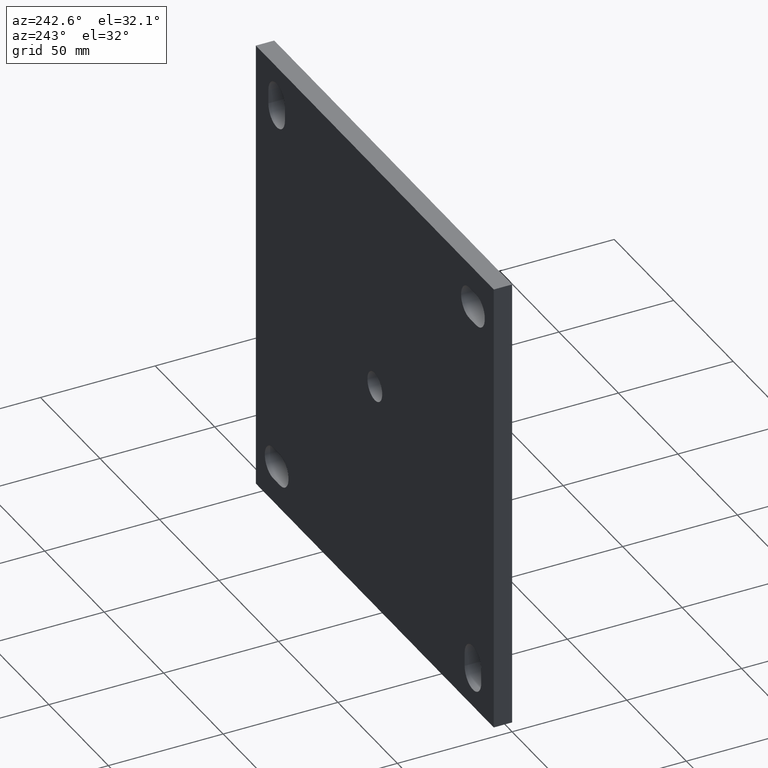
[diagram: clean part render]
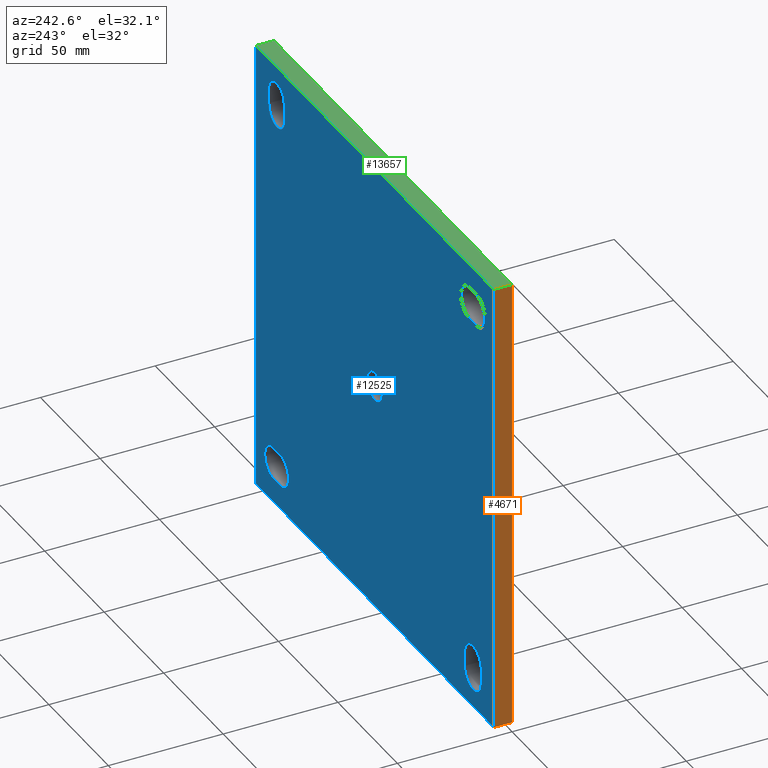
[diagram: same view with three faces highlighted in distinct colors, each labeled with its STEP entity id]
A machine part, auxiliary view with three faces highlighted in distinct colors.
Their STEP definitions:

[orange] entity #4671 — the highlighted planar face has unit normal (1, 0, -0).
#674 = CARTESIAN_POINT ( 'NONE',  ( -100.0000000000000284, 0.000000000000000000, 100.0000000000000000 ) ) ;
#742 = VECTOR ( 'NONE', #6615, 1000.000000000000000 ) ;
#751 = ORIENTED_EDGE ( 'NONE', *, *, #7974, .T. ) ;
#1084 = CARTESIAN_POINT ( 'NONE',  ( -100.0000000000000426, 8.000000000000000000, -100.0000000000000000 ) ) ;
#1810 = CARTESIAN_POINT ( 'NONE',  ( -100.0000000000000426, 0.000000000000000000, -100.0000000000000000 ) ) ;
#2337 = ORIENTED_EDGE ( 'NONE', *, *, #3520, .F. ) ;
#2996 = LINE ( 'NONE', #12694, #14046 ) ;
#3121 = CARTESIAN_POINT ( 'NONE',  ( -100.0000000000000284, 8.000000000000000000, 100.0000000000000000 ) ) ;
#3321 = VERTEX_POINT ( 'NONE', #674 ) ;
#3520 = EDGE_CURVE ( 'NONE', #12013, #4076, #2996, .T. ) ;
#4076 = VERTEX_POINT ( 'NONE', #10517 ) ;
#4195 = VERTEX_POINT ( 'NONE', #1810 ) ;
#4197 = DIRECTION ( 'NONE',  ( -0.000000000000000000, -1.000000000000000000, -0.000000000000000000 ) ) ;
#4534 = EDGE_CURVE ( 'NONE', #4195, #3321, #6785, .T. ) ;
#4671 = ADVANCED_FACE ( 'NONE', ( #10550 ), #9068, .F. ) ;
#4691 = EDGE_LOOP ( 'NONE', ( #9358, #8830, #2337, #751 ) ) ;
#4951 = DIRECTION ( 'NONE',  ( -6.938893903907228378E-17, 0.000000000000000000, -1.000000000000000000 ) ) ;
#6288 = VECTOR ( 'NONE', #9929, 1000.000000000000000 ) ;
#6615 = DIRECTION ( 'NONE',  ( 6.938893903907228378E-17, 0.000000000000000000, 1.000000000000000000 ) ) ;
#6785 = LINE ( 'NONE', #14688, #742 ) ;
#6875 = CARTESIAN_POINT ( 'NONE',  ( -100.0000000000000426, 8.000000000000000000, -100.0000000000000000 ) ) ;
#7171 = VECTOR ( 'NONE', #4197, 1000.000000000000000 ) ;
#7974 = EDGE_CURVE ( 'NONE', #12013, #4195, #14457, .T. ) ;
#8830 = ORIENTED_EDGE ( 'NONE', *, *, #10938, .F. ) ;
#8861 = CARTESIAN_POINT ( 'NONE',  ( -100.0000000000000426, 8.000000000000000000, -100.0000000000000000 ) ) ;
#8943 = LINE ( 'NONE', #3121, #6288 ) ;
#9068 = PLANE ( 'NONE',  #9306 ) ;
#9306 = AXIS2_PLACEMENT_3D ( 'NONE', #6875, #10538, #4951 ) ;
#9358 = ORIENTED_EDGE ( 'NONE', *, *, #4534, .T. ) ;
#9929 = DIRECTION ( 'NONE',  ( -0.000000000000000000, -1.000000000000000000, -0.000000000000000000 ) ) ;
#10517 = CARTESIAN_POINT ( 'NONE',  ( -100.0000000000000284, 8.000000000000000000, 100.0000000000000000 ) ) ;
#10538 = DIRECTION ( 'NONE',  ( 1.000000000000000000, 0.000000000000000000, -6.938893903907228378E-17 ) ) ;
#10550 = FACE_OUTER_BOUND ( 'NONE', #4691, .T. ) ;
#10938 = EDGE_CURVE ( 'NONE', #4076, #3321, #8943, .T. ) ;
#12013 = VERTEX_POINT ( 'NONE', #1084 ) ;
#12694 = CARTESIAN_POINT ( 'NONE',  ( -100.0000000000000426, 8.000000000000000000, -100.0000000000000000 ) ) ;
#14046 = VECTOR ( 'NONE', #14092, 1000.000000000000000 ) ;
#14092 = DIRECTION ( 'NONE',  ( 6.938893903907228378E-17, 0.000000000000000000, 1.000000000000000000 ) ) ;
#14457 = LINE ( 'NONE', #8861, #7171 ) ;
#14688 = CARTESIAN_POINT ( 'NONE',  ( -100.0000000000000426, 0.000000000000000000, -100.0000000000000000 ) ) ;

[blue] entity #12525 — the highlighted planar face has unit normal (0, 1, 0).
#36 = CARTESIAN_POINT ( 'NONE',  ( 79.50000000000002842, 8.000000000000000000, -89.50000000000002842 ) ) ;
#40 = VECTOR ( 'NONE', #12912, 1000.000000000000000 ) ;
#54 = CIRCLE ( 'NONE', #9012, 6.999999999999992006 ) ;
#66 = ORIENTED_EDGE ( 'NONE', *, *, #445, .F. ) ;
#72 = CIRCLE ( 'NONE', #10829, 7.000000000000006217 ) ;
#98 = DIRECTION ( 'NONE',  ( -1.000000000000000000, -0.000000000000000000, -0.000000000000000000 ) ) ;
#135 = ORIENTED_EDGE ( 'NONE', *, *, #5582, .F. ) ;
#147 = DIRECTION ( 'NONE',  ( 0.000000000000000000, 0.000000000000000000, 1.000000000000000000 ) ) ;
#186 = AXIS2_PLACEMENT_3D ( 'NONE', #12750, #10450, #3610 ) ;
#191 = CARTESIAN_POINT ( 'NONE',  ( -75.50000000000001421, 8.000000000000000000, -85.50000000000009948 ) ) ;
#198 = EDGE_CURVE ( 'NONE', #1707, #14170, #10933, .T. ) ;
#399 = LINE ( 'NONE', #4769, #3221 ) ;
#425 = LINE ( 'NONE', #36, #756 ) ;
#445 = EDGE_CURVE ( 'NONE', #9309, #11337, #11468, .T. ) ;
#500 = EDGE_CURVE ( 'NONE', #14649, #12241, #9510, .T. ) ;
#721 = CARTESIAN_POINT ( 'NONE',  ( -85.49999999999998579, 8.000000000000000000, 89.50000000000000000 ) ) ;
#723 = LINE ( 'NONE', #7234, #40 ) ;
#756 = VECTOR ( 'NONE', #98, 1000.000000000000000 ) ;
#840 = ORIENTED_EDGE ( 'NONE', *, *, #3084, .F. ) ;
#925 = EDGE_CURVE ( 'NONE', #5049, #12842, #4502, .T. ) ;
#1021 = CARTESIAN_POINT ( 'NONE',  ( -75.50000000000001421, 8.000000000000000000, -79.50000000000007105 ) ) ;
#1084 = CARTESIAN_POINT ( 'NONE',  ( -100.0000000000000426, 8.000000000000000000, -100.0000000000000000 ) ) ;
#1225 = EDGE_LOOP ( 'NONE', ( #4443, #7725, #66, #135 ) ) ;
#1280 = DIRECTION ( 'NONE',  ( 0.000000000000000000, 0.000000000000000000, 1.000000000000000000 ) ) ;
#1312 = CARTESIAN_POINT ( 'NONE',  ( -85.49999999999998579, 8.000000000000000000, 75.49999999999998579 ) ) ;
#1434 = CARTESIAN_POINT ( 'NONE',  ( -75.50000000000001421, 8.000000000000000000, -85.50000000000009948 ) ) ;
#1508 = VERTEX_POINT ( 'NONE', #191 ) ;
#1569 = EDGE_CURVE ( 'NONE', #14170, #14291, #12582, .T. ) ;
#1707 = VERTEX_POINT ( 'NONE', #8449 ) ;
#1879 = CARTESIAN_POINT ( 'NONE',  ( 82.50000000000001421, 8.000000000000000000, 85.50000000000000000 ) ) ;
#1970 = LINE ( 'NONE', #1312, #2160 ) ;
#1988 = FACE_BOUND ( 'NONE', #8291, .T. ) ;
#2017 = EDGE_LOOP ( 'NONE', ( #13799, #2444, #13406, #3923 ) ) ;
#2160 = VECTOR ( 'NONE', #9258, 1000.000000000000000 ) ;
#2191 = FACE_BOUND ( 'NONE', #7005, .T. ) ;
#2220 = VERTEX_POINT ( 'NONE', #5321 ) ;
#2273 = VECTOR ( 'NONE', #147, 1000.000000000000000 ) ;
#2334 = DIRECTION ( 'NONE',  ( 0.000000000000000000, 0.000000000000000000, 1.000000000000000000 ) ) ;
#2360 = CARTESIAN_POINT ( 'NONE',  ( 75.50000000000001421, 8.000000000000000000, 79.50000000000005684 ) ) ;
#2444 = ORIENTED_EDGE ( 'NONE', *, *, #7781, .F. ) ;
#2543 = CARTESIAN_POINT ( 'NONE',  ( 79.50000000000002842, 8.000000000000000000, -89.50000000000002842 ) ) ;
#2729 = VECTOR ( 'NONE', #13983, 1000.000000000000000 ) ;
#2984 = CARTESIAN_POINT ( 'NONE',  ( -82.50000000000001421, 8.000000000000000000, -85.50000000000008527 ) ) ;
#2996 = LINE ( 'NONE', #12694, #14046 ) ;
#3057 = VERTEX_POINT ( 'NONE', #7034 ) ;
#3084 = EDGE_CURVE ( 'NONE', #14104, #14649, #3562, .T. ) ;
#3216 = CARTESIAN_POINT ( 'NONE',  ( 99.99999999999998579, 8.000000000000000000, 100.0000000000000000 ) ) ;
#3221 = VECTOR ( 'NONE', #10406, 1000.000000000000000 ) ;
#3489 = CARTESIAN_POINT ( 'NONE',  ( 79.50000000000002842, 8.000000000000000000, -82.50000000000005684 ) ) ;
#3520 = EDGE_CURVE ( 'NONE', #12013, #4076, #2996, .T. ) ;
#3562 = CIRCLE ( 'NONE', #13482, 6.999999999999964473 ) ;
#3610 = DIRECTION ( 'NONE',  ( 0.000000000000000000, -0.000000000000000000, 1.000000000000000000 ) ) ;
#3720 = EDGE_LOOP ( 'NONE', ( #7143, #12303, #5206, #9406 ) ) ;
#3892 = DIRECTION ( 'NONE',  ( 0.000000000000000000, 1.000000000000000000, 0.000000000000000000 ) ) ;
#3923 = ORIENTED_EDGE ( 'NONE', *, *, #1569, .F. ) ;
#4012 = VERTEX_POINT ( 'NONE', #5915 ) ;
#4076 = VERTEX_POINT ( 'NONE', #10517 ) ;
#4436 = AXIS2_PLACEMENT_3D ( 'NONE', #7077, #13860, #1280 ) ;
#4443 = ORIENTED_EDGE ( 'NONE', *, *, #6580, .F. ) ;
#4502 = LINE ( 'NONE', #721, #8946 ) ;
#4769 = CARTESIAN_POINT ( 'NONE',  ( -100.0000000000000284, 8.000000000000000000, 100.0000000000000000 ) ) ;
#4859 = FACE_OUTER_BOUND ( 'NONE', #9859, .T. ) ;
#5049 = VERTEX_POINT ( 'NONE', #11655 ) ;
#5079 = VERTEX_POINT ( 'NONE', #8202 ) ;
#5191 = EDGE_CURVE ( 'NONE', #4076, #13660, #399, .T. ) ;
#5197 = FACE_BOUND ( 'NONE', #2017, .T. ) ;
#5206 = ORIENTED_EDGE ( 'NONE', *, *, #5959, .F. ) ;
#5288 = DIRECTION ( 'NONE',  ( 1.000000000000000000, 0.000000000000000000, 0.000000000000000000 ) ) ;
#5292 = CARTESIAN_POINT ( 'NONE',  ( 0.000000000000000000, 8.000000000000000000, 6.250000000000000000 ) ) ;
#5321 = CARTESIAN_POINT ( 'NONE',  ( -89.49999999999998579, 8.000000000000000000, -85.50000000000009948 ) ) ;
#5389 = VECTOR ( 'NONE', #6434, 1000.000000000000000 ) ;
#5580 = DIRECTION ( 'NONE',  ( 0.000000000000000000, 1.000000000000000000, 0.000000000000000000 ) ) ;
#5582 = EDGE_CURVE ( 'NONE', #2220, #9309, #12863, .T. ) ;
#5755 = VECTOR ( 'NONE', #14220, 1000.000000000000000 ) ;
#5788 = DIRECTION ( 'NONE',  ( 0.000000000000000000, 0.000000000000000000, 1.000000000000000000 ) ) ;
#5915 = CARTESIAN_POINT ( 'NONE',  ( -79.50000000000001421, 8.000000000000000000, 75.49999999999998579 ) ) ;
#5959 = EDGE_CURVE ( 'NONE', #12842, #4012, #72, .T. ) ;
#6068 = DIRECTION ( 'NONE',  ( 0.000000000000000000, 0.000000000000000000, 1.000000000000000000 ) ) ;
#6187 = CARTESIAN_POINT ( 'NONE',  ( 85.50000000000001421, 8.000000000000000000, -82.50000000000005684 ) ) ;
#6264 = DIRECTION ( 'NONE',  ( 0.000000000000000000, 0.000000000000000000, 1.000000000000000000 ) ) ;
#6372 = VERTEX_POINT ( 'NONE', #8557 ) ;
#6434 = DIRECTION ( 'NONE',  ( -0.000000000000000000, -0.000000000000000000, -1.000000000000000000 ) ) ;
#6580 = EDGE_CURVE ( 'NONE', #1508, #2220, #54, .T. ) ;
#6617 = LINE ( 'NONE', #1434, #2729 ) ;
#6639 = DIRECTION ( 'NONE',  ( 0.000000000000000000, 0.000000000000000000, 1.000000000000000000 ) ) ;
#6690 = ORIENTED_EDGE ( 'NONE', *, *, #500, .F. ) ;
#6732 = CARTESIAN_POINT ( 'NONE',  ( -79.50000000000001421, 8.000000000000000000, 82.49999999999998579 ) ) ;
#6797 = EDGE_CURVE ( 'NONE', #7296, #7296, #7835, .T. ) ;
#6904 = CARTESIAN_POINT ( 'NONE',  ( 75.50000000000001421, 8.000000000000000000, 79.50000000000005684 ) ) ;
#7005 = EDGE_LOOP ( 'NONE', ( #840, #13210, #8137, #6690 ) ) ;
#7034 = CARTESIAN_POINT ( 'NONE',  ( 89.50000000000002842, 8.000000000000000000, 85.49999999999998579 ) ) ;
#7077 = CARTESIAN_POINT ( 'NONE',  ( 0.000000000000000000, 8.000000000000000000, 0.000000000000000000 ) ) ;
#7143 = ORIENTED_EDGE ( 'NONE', *, *, #8795, .F. ) ;
#7234 = CARTESIAN_POINT ( 'NONE',  ( -100.0000000000000426, 8.000000000000000000, -100.0000000000000000 ) ) ;
#7296 = VERTEX_POINT ( 'NONE', #5292 ) ;
#7320 = ORIENTED_EDGE ( 'NONE', *, *, #3520, .T. ) ;
#7352 = CARTESIAN_POINT ( 'NONE',  ( 79.50000000000002842, 8.000000000000000000, -75.50000000000008527 ) ) ;
#7397 = CARTESIAN_POINT ( 'NONE',  ( -82.50000000000001421, 8.000000000000000000, -79.50000000000008527 ) ) ;
#7706 = AXIS2_PLACEMENT_3D ( 'NONE', #11264, #5580, #5788 ) ;
#7725 = ORIENTED_EDGE ( 'NONE', *, *, #10643, .F. ) ;
#7736 = CARTESIAN_POINT ( 'NONE',  ( 89.50000000000002842, 8.000000000000000000, 79.50000000000005684 ) ) ;
#7744 = DIRECTION ( 'NONE',  ( 0.000000000000000000, 1.000000000000000000, 0.000000000000000000 ) ) ;
#7781 = EDGE_CURVE ( 'NONE', #3057, #1707, #13779, .T. ) ;
#7835 = CIRCLE ( 'NONE', #4436, 6.250000000000000000 ) ;
#8002 = DIRECTION ( 'NONE',  ( 0.000000000000000000, 1.000000000000000000, 0.000000000000000000 ) ) ;
#8061 = FACE_BOUND ( 'NONE', #1225, .T. ) ;
#8137 = ORIENTED_EDGE ( 'NONE', *, *, #13802, .F. ) ;
#8140 = PLANE ( 'NONE',  #186 ) ;
#8202 = CARTESIAN_POINT ( 'NONE',  ( -85.49999999999998579, 8.000000000000000000, 75.49999999999998579 ) ) ;
#8291 = EDGE_LOOP ( 'NONE', ( #9082 ) ) ;
#8396 = AXIS2_PLACEMENT_3D ( 'NONE', #1879, #8849, #13222 ) ;
#8420 = VECTOR ( 'NONE', #13569, 1000.000000000000000 ) ;
#8449 = CARTESIAN_POINT ( 'NONE',  ( 89.50000000000002842, 8.000000000000000000, 79.50000000000005684 ) ) ;
#8557 = CARTESIAN_POINT ( 'NONE',  ( 99.99999999999995737, 8.000000000000000000, -100.0000000000000000 ) ) ;
#8634 = ORIENTED_EDGE ( 'NONE', *, *, #9037, .T. ) ;
#8670 = VERTEX_POINT ( 'NONE', #11848 ) ;
#8795 = EDGE_CURVE ( 'NONE', #5079, #5049, #11421, .T. ) ;
#8824 = ORIENTED_EDGE ( 'NONE', *, *, #5191, .T. ) ;
#8849 = DIRECTION ( 'NONE',  ( 0.000000000000000000, 1.000000000000000000, 0.000000000000000000 ) ) ;
#8946 = VECTOR ( 'NONE', #5288, 1000.000000000000000 ) ;
#9012 = AXIS2_PLACEMENT_3D ( 'NONE', #2984, #13167, #6264 ) ;
#9037 = EDGE_CURVE ( 'NONE', #6372, #12013, #723, .T. ) ;
#9082 = ORIENTED_EDGE ( 'NONE', *, *, #6797, .F. ) ;
#9258 = DIRECTION ( 'NONE',  ( -1.000000000000000000, -0.000000000000000000, -0.000000000000000000 ) ) ;
#9309 = VERTEX_POINT ( 'NONE', #11643 ) ;
#9406 = ORIENTED_EDGE ( 'NONE', *, *, #925, .F. ) ;
#9510 = LINE ( 'NONE', #7352, #5755 ) ;
#9587 = CARTESIAN_POINT ( 'NONE',  ( 85.50000000000000000, 8.000000000000000000, -75.50000000000009948 ) ) ;
#9859 = EDGE_LOOP ( 'NONE', ( #14132, #8634, #7320, #8824 ) ) ;
#10400 = AXIS2_PLACEMENT_3D ( 'NONE', #7397, #3892, #6068 ) ;
#10406 = DIRECTION ( 'NONE',  ( 1.000000000000000000, 0.000000000000000000, 0.000000000000000000 ) ) ;
#10450 = DIRECTION ( 'NONE',  ( 0.000000000000000000, 1.000000000000000000, 0.000000000000000000 ) ) ;
#10517 = CARTESIAN_POINT ( 'NONE',  ( -100.0000000000000284, 8.000000000000000000, 100.0000000000000000 ) ) ;
#10597 = LINE ( 'NONE', #12415, #8420 ) ;
#10643 = EDGE_CURVE ( 'NONE', #11337, #1508, #6617, .T. ) ;
#10716 = CARTESIAN_POINT ( 'NONE',  ( 75.50000000000001421, 8.000000000000000000, 85.49999999999998579 ) ) ;
#10734 = DIRECTION ( 'NONE',  ( 0.000000000000000000, 1.000000000000000000, 0.000000000000000000 ) ) ;
#10785 = DIRECTION ( 'NONE',  ( 0.000000000000000000, 0.000000000000000000, 1.000000000000000000 ) ) ;
#10829 = AXIS2_PLACEMENT_3D ( 'NONE', #6732, #12352, #14644 ) ;
#10888 = VECTOR ( 'NONE', #13384, 1000.000000000000000 ) ;
#10933 = CIRCLE ( 'NONE', #7706, 7.000000000000006217 ) ;
#11083 = CARTESIAN_POINT ( 'NONE',  ( 79.50000000000002842, 8.000000000000000000, -75.50000000000008527 ) ) ;
#11084 = FACE_BOUND ( 'NONE', #3720, .T. ) ;
#11264 = CARTESIAN_POINT ( 'NONE',  ( 82.50000000000001421, 8.000000000000000000, 79.50000000000004263 ) ) ;
#11337 = VERTEX_POINT ( 'NONE', #1021 ) ;
#11421 = CIRCLE ( 'NONE', #11580, 7.000000000000006217 ) ;
#11468 = CIRCLE ( 'NONE', #10400, 6.999999999999992006 ) ;
#11502 = AXIS2_PLACEMENT_3D ( 'NONE', #6187, #10734, #10785 ) ;
#11532 = EDGE_CURVE ( 'NONE', #14291, #3057, #12510, .T. ) ;
#11580 = AXIS2_PLACEMENT_3D ( 'NONE', #12253, #7744, #6639 ) ;
#11592 = EDGE_CURVE ( 'NONE', #13660, #6372, #10597, .T. ) ;
#11643 = CARTESIAN_POINT ( 'NONE',  ( -89.50000000000000000, 8.000000000000000000, -79.50000000000007105 ) ) ;
#11655 = CARTESIAN_POINT ( 'NONE',  ( -85.49999999999998579, 8.000000000000000000, 89.50000000000000000 ) ) ;
#11848 = CARTESIAN_POINT ( 'NONE',  ( 85.50000000000000000, 8.000000000000000000, -89.50000000000002842 ) ) ;
#12013 = VERTEX_POINT ( 'NONE', #1084 ) ;
#12241 = VERTEX_POINT ( 'NONE', #9587 ) ;
#12253 = CARTESIAN_POINT ( 'NONE',  ( -85.49999999999998579, 8.000000000000000000, 82.49999999999998579 ) ) ;
#12303 = ORIENTED_EDGE ( 'NONE', *, *, #14079, .F. ) ;
#12352 = DIRECTION ( 'NONE',  ( 0.000000000000000000, 1.000000000000000000, 0.000000000000000000 ) ) ;
#12415 = CARTESIAN_POINT ( 'NONE',  ( 99.99999999999995737, 8.000000000000000000, -100.0000000000000000 ) ) ;
#12510 = CIRCLE ( 'NONE', #8396, 7.000000000000006217 ) ;
#12525 = ADVANCED_FACE ( 'NONE', ( #8061, #5197, #11084, #2191, #1988, #4859 ), #8140, .T. ) ;
#12582 = LINE ( 'NONE', #6904, #2273 ) ;
#12636 = EDGE_CURVE ( 'NONE', #8670, #14104, #425, .T. ) ;
#12694 = CARTESIAN_POINT ( 'NONE',  ( -100.0000000000000426, 8.000000000000000000, -100.0000000000000000 ) ) ;
#12750 = CARTESIAN_POINT ( 'NONE',  ( 0.000000000000000000, 8.000000000000000000, 0.000000000000000000 ) ) ;
#12842 = VERTEX_POINT ( 'NONE', #13164 ) ;
#12863 = LINE ( 'NONE', #14472, #10888 ) ;
#12912 = DIRECTION ( 'NONE',  ( -1.000000000000000000, -0.000000000000000000, -0.000000000000000000 ) ) ;
#13164 = CARTESIAN_POINT ( 'NONE',  ( -79.50000000000001421, 8.000000000000000000, 89.50000000000000000 ) ) ;
#13167 = DIRECTION ( 'NONE',  ( 0.000000000000000000, 1.000000000000000000, 0.000000000000000000 ) ) ;
#13210 = ORIENTED_EDGE ( 'NONE', *, *, #12636, .F. ) ;
#13222 = DIRECTION ( 'NONE',  ( 0.000000000000000000, 0.000000000000000000, 1.000000000000000000 ) ) ;
#13384 = DIRECTION ( 'NONE',  ( 0.000000000000000000, 0.000000000000000000, 1.000000000000000000 ) ) ;
#13406 = ORIENTED_EDGE ( 'NONE', *, *, #11532, .F. ) ;
#13482 = AXIS2_PLACEMENT_3D ( 'NONE', #3489, #8002, #2334 ) ;
#13569 = DIRECTION ( 'NONE',  ( -1.387778780781445676E-16, -0.000000000000000000, -1.000000000000000000 ) ) ;
#13660 = VERTEX_POINT ( 'NONE', #3216 ) ;
#13731 = CIRCLE ( 'NONE', #11502, 6.999999999999964473 ) ;
#13779 = LINE ( 'NONE', #7736, #5389 ) ;
#13799 = ORIENTED_EDGE ( 'NONE', *, *, #198, .F. ) ;
#13802 = EDGE_CURVE ( 'NONE', #12241, #8670, #13731, .T. ) ;
#13860 = DIRECTION ( 'NONE',  ( 0.000000000000000000, 1.000000000000000000, 0.000000000000000000 ) ) ;
#13983 = DIRECTION ( 'NONE',  ( -0.000000000000000000, -0.000000000000000000, -1.000000000000000000 ) ) ;
#14046 = VECTOR ( 'NONE', #14092, 1000.000000000000000 ) ;
#14079 = EDGE_CURVE ( 'NONE', #4012, #5079, #1970, .T. ) ;
#14092 = DIRECTION ( 'NONE',  ( 6.938893903907228378E-17, 0.000000000000000000, 1.000000000000000000 ) ) ;
#14104 = VERTEX_POINT ( 'NONE', #2543 ) ;
#14132 = ORIENTED_EDGE ( 'NONE', *, *, #11592, .T. ) ;
#14170 = VERTEX_POINT ( 'NONE', #2360 ) ;
#14220 = DIRECTION ( 'NONE',  ( 1.000000000000000000, 0.000000000000000000, 0.000000000000000000 ) ) ;
#14291 = VERTEX_POINT ( 'NONE', #10716 ) ;
#14472 = CARTESIAN_POINT ( 'NONE',  ( -89.49999999999998579, 8.000000000000000000, -85.50000000000009948 ) ) ;
#14644 = DIRECTION ( 'NONE',  ( 0.000000000000000000, 0.000000000000000000, 1.000000000000000000 ) ) ;
#14649 = VERTEX_POINT ( 'NONE', #11083 ) ;

[green] entity #13657 — the highlighted planar face has unit normal (0, 0, -1).
#87 = EDGE_LOOP ( 'NONE', ( #12201, #6865, #12546, #165 ) ) ;
#165 = ORIENTED_EDGE ( 'NONE', *, *, #10938, .T. ) ;
#399 = LINE ( 'NONE', #4769, #3221 ) ;
#574 = LINE ( 'NONE', #10826, #11953 ) ;
#674 = CARTESIAN_POINT ( 'NONE',  ( -100.0000000000000284, 0.000000000000000000, 100.0000000000000000 ) ) ;
#928 = DIRECTION ( 'NONE',  ( 0.000000000000000000, 0.000000000000000000, -1.000000000000000000 ) ) ;
#1105 = CARTESIAN_POINT ( 'NONE',  ( 99.99999999999998579, 0.000000000000000000, 100.0000000000000000 ) ) ;
#1203 = DIRECTION ( 'NONE',  ( -0.000000000000000000, -1.000000000000000000, -0.000000000000000000 ) ) ;
#3121 = CARTESIAN_POINT ( 'NONE',  ( -100.0000000000000284, 8.000000000000000000, 100.0000000000000000 ) ) ;
#3216 = CARTESIAN_POINT ( 'NONE',  ( 99.99999999999998579, 8.000000000000000000, 100.0000000000000000 ) ) ;
#3221 = VECTOR ( 'NONE', #10406, 1000.000000000000000 ) ;
#3321 = VERTEX_POINT ( 'NONE', #674 ) ;
#3686 = EDGE_CURVE ( 'NONE', #13660, #8427, #13308, .T. ) ;
#4076 = VERTEX_POINT ( 'NONE', #10517 ) ;
#4412 = PLANE ( 'NONE',  #13833 ) ;
#4769 = CARTESIAN_POINT ( 'NONE',  ( -100.0000000000000284, 8.000000000000000000, 100.0000000000000000 ) ) ;
#5191 = EDGE_CURVE ( 'NONE', #4076, #13660, #399, .T. ) ;
#5492 = DIRECTION ( 'NONE',  ( -1.000000000000000000, 0.000000000000000000, -0.000000000000000000 ) ) ;
#6288 = VECTOR ( 'NONE', #9929, 1000.000000000000000 ) ;
#6865 = ORIENTED_EDGE ( 'NONE', *, *, #3686, .F. ) ;
#8427 = VERTEX_POINT ( 'NONE', #1105 ) ;
#8943 = LINE ( 'NONE', #3121, #6288 ) ;
#9929 = DIRECTION ( 'NONE',  ( -0.000000000000000000, -1.000000000000000000, -0.000000000000000000 ) ) ;
#10406 = DIRECTION ( 'NONE',  ( 1.000000000000000000, 0.000000000000000000, 0.000000000000000000 ) ) ;
#10517 = CARTESIAN_POINT ( 'NONE',  ( -100.0000000000000284, 8.000000000000000000, 100.0000000000000000 ) ) ;
#10826 = CARTESIAN_POINT ( 'NONE',  ( -100.0000000000000284, 0.000000000000000000, 100.0000000000000000 ) ) ;
#10938 = EDGE_CURVE ( 'NONE', #4076, #3321, #8943, .T. ) ;
#11197 = VECTOR ( 'NONE', #1203, 1000.000000000000000 ) ;
#11629 = FACE_OUTER_BOUND ( 'NONE', #87, .T. ) ;
#11953 = VECTOR ( 'NONE', #14191, 1000.000000000000000 ) ;
#12201 = ORIENTED_EDGE ( 'NONE', *, *, #13854, .T. ) ;
#12531 = CARTESIAN_POINT ( 'NONE',  ( 99.99999999999998579, 8.000000000000000000, 100.0000000000000000 ) ) ;
#12546 = ORIENTED_EDGE ( 'NONE', *, *, #5191, .F. ) ;
#13308 = LINE ( 'NONE', #12531, #11197 ) ;
#13657 = ADVANCED_FACE ( 'NONE', ( #11629 ), #4412, .F. ) ;
#13660 = VERTEX_POINT ( 'NONE', #3216 ) ;
#13833 = AXIS2_PLACEMENT_3D ( 'NONE', #14541, #928, #5492 ) ;
#13854 = EDGE_CURVE ( 'NONE', #3321, #8427, #574, .T. ) ;
#14191 = DIRECTION ( 'NONE',  ( 1.000000000000000000, 0.000000000000000000, 0.000000000000000000 ) ) ;
#14541 = CARTESIAN_POINT ( 'NONE',  ( -100.0000000000000284, 8.000000000000000000, 100.0000000000000000 ) ) ;